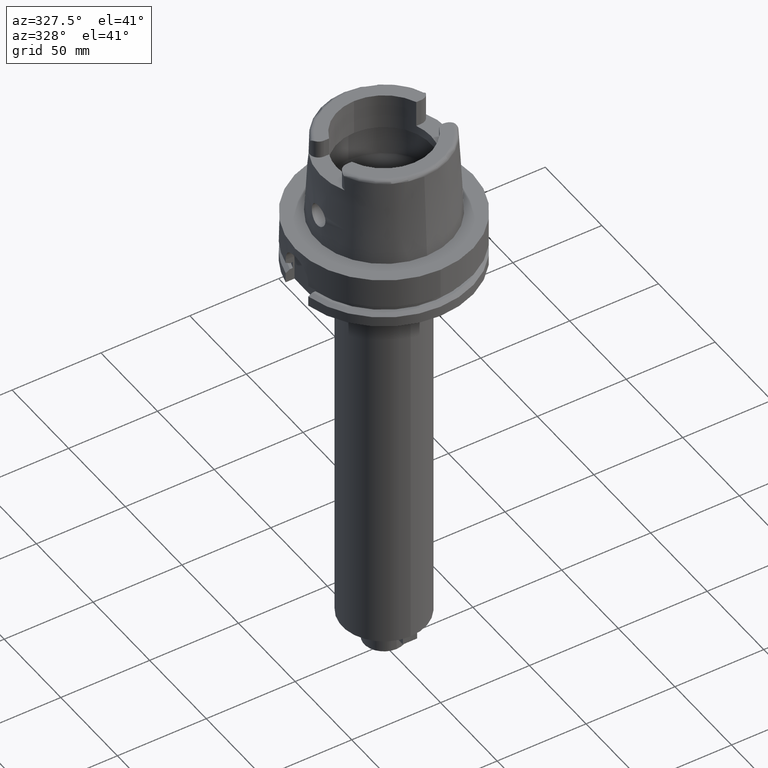
[diagram: clean part render]
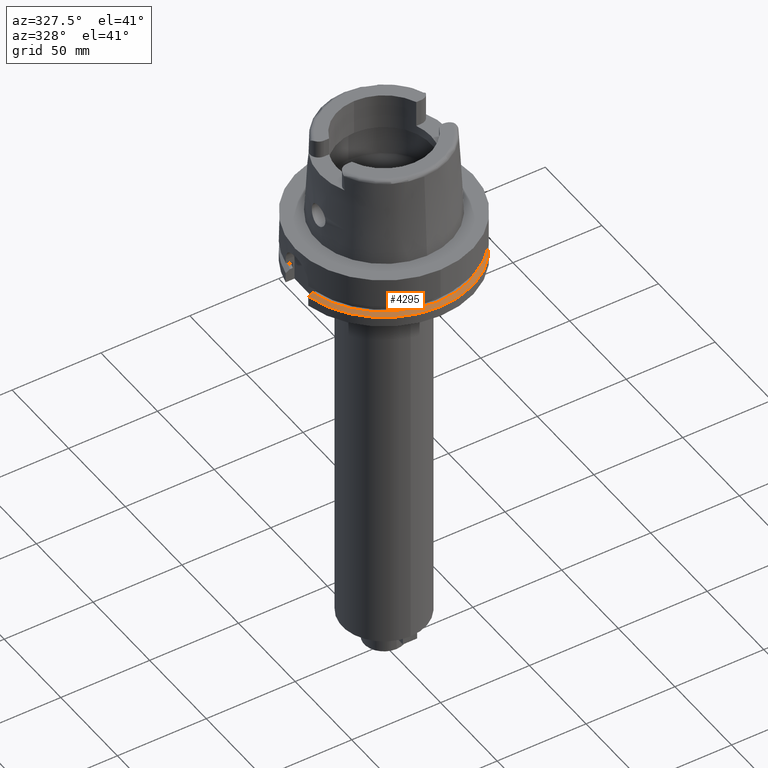
[diagram: same view with one face highlighted and labeled with its STEP entity id]
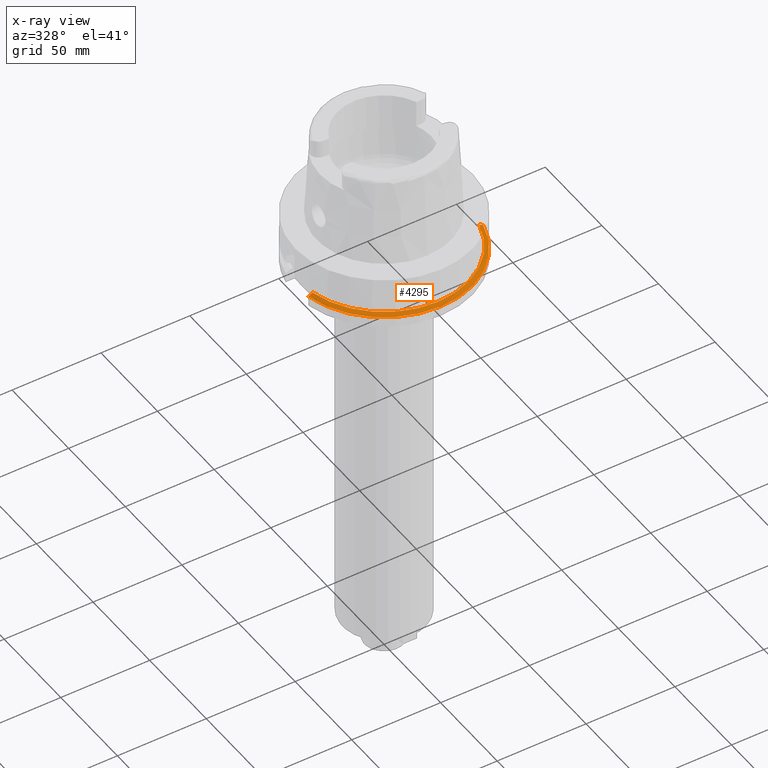
[diagram: x-ray of the same camera — body ghosted, the highlighted face saturated]
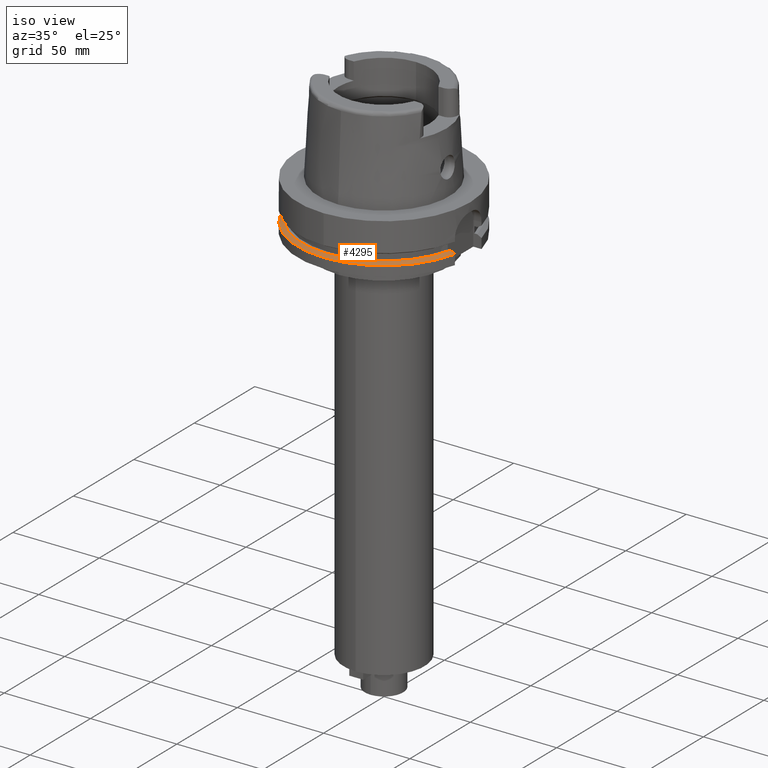
[diagram: same view with one face highlighted and labeled with its STEP entity id]
A machine part, auxiliary view. The second image highlights one B-rep face of the part: STEP entity #4295.
The next image is the same camera in x-ray: the body ghosted, the highlighted face saturated — about 0% of this face is hidden behind the body in this view.
A second angle (iso view) of the same face is appended — the face is thin or edge-on in the first view.
In plain terms, the highlighted conical surface has half-angle 60 deg.
Its self-contained STEP definition (entity closure, byte-faithful):
#1985=CARTESIAN_POINT('',(0.E0,0.E0,-2.1875E1));
#1986=DIRECTION('',(0.E0,0.E0,-1.E0));
#1987=DIRECTION('',(9.729578356533E-1,-2.309827916554E-1,0.E0));
#1988=AXIS2_PLACEMENT_3D('',#1985,#1986,#1987);
#1993=CARTESIAN_POINT('',(0.E0,0.E0,-2.1875E1));
#1994=DIRECTION('',(0.E0,0.E0,-1.E0));
#1995=DIRECTION('',(0.E0,-1.E0,0.E0));
#1996=AXIS2_PLACEMENT_3D('',#1993,#1994,#1995);
#2001=CARTESIAN_POINT('',(-4.898979485566E1,-1.E1,-2.324759526419E1));
#2002=CARTESIAN_POINT('',(-4.872004945853E1,-1.E1,-2.309500422459E1));
#2003=CARTESIAN_POINT('',(-4.818046650199E1,-1.E1,-2.278987516332E1));
#2004=CARTESIAN_POINT('',(-4.737081717348E1,-1.E1,-2.233233749621E1));
#2005=CARTESIAN_POINT('',(-4.683086373711E1,-1.E1,-2.202742395139E1));
#2006=CARTESIAN_POINT('',(-4.656083740330E1,-1.E1,-2.1875E1));
#2011=CARTESIAN_POINT('',(4.633477721644E1,-1.1E1,-2.1875E1));
#2012=CARTESIAN_POINT('',(4.660608588337E1,-1.1E1,-2.202740424370E1));
#2013=CARTESIAN_POINT('',(4.714858158706E1,-1.1E1,-2.233229423039E1));
#2014=CARTESIAN_POINT('',(4.796198326449E1,-1.1E1,-2.278983319675E1));
#2015=CARTESIAN_POINT('',(4.850402780016E1,-1.1E1,-2.309498594403E1));
#2016=CARTESIAN_POINT('',(4.877499359303E1,-1.1E1,-2.324759526419E1));
#2021=CARTESIAN_POINT('',(0.E0,0.E0,-2.324759526419E1));
#2022=DIRECTION('',(0.E0,0.E0,-1.E0));
#2023=DIRECTION('',(9.754998718606E-1,-2.2E-1,0.E0));
#2024=AXIS2_PLACEMENT_3D('',#2021,#2022,#2023);
#2029=CARTESIAN_POINT('',(0.E0,0.E0,-2.324759526419E1));
#2030=DIRECTION('',(0.E0,0.E0,-1.E0));
#2031=DIRECTION('',(0.E0,-1.E0,0.E0));
#2032=AXIS2_PLACEMENT_3D('',#2029,#2030,#2031);
#2680=CARTESIAN_POINT('',(-4.898979485566E1,-1.E1,-2.324759526419E1));
#2681=VERTEX_POINT('',#2680);
#2682=CARTESIAN_POINT('',(4.877499359303E1,-1.1E1,-2.324759526419E1));
#2683=CARTESIAN_POINT('',(1.598721155460E-14,-5.E1,-2.324759526419E1));
#2684=VERTEX_POINT('',#2682);
#2685=VERTEX_POINT('',#2683);
#2705=CARTESIAN_POINT('',(-4.656083740330E1,-1.E1,-2.1875E1));
#2706=VERTEX_POINT('',#2705);
#2721=CARTESIAN_POINT('',(7.396832229915E-14,-4.762259526419E1,-2.1875E1));
#2722=VERTEX_POINT('',#2721);
#2723=CARTESIAN_POINT('',(4.633477721644E1,-1.1E1,-2.1875E1));
#2724=VERTEX_POINT('',#2723);
#4282=CARTESIAN_POINT('',(0.E0,0.E0,-2.256129763210E1));
#4283=DIRECTION('',(0.E0,0.E0,-1.E0));
#4284=DIRECTION('',(0.E0,-1.E0,0.E0));
#4285=AXIS2_PLACEMENT_3D('',#4282,#4283,#4284);
#4286=CONICAL_SURFACE('',#4285,4.881129763209E1,6.E1);
#4287=ORIENTED_EDGE('',*,*,#3952,.T.);
#4288=ORIENTED_EDGE('',*,*,#4277,.F.);
#4289=ORIENTED_EDGE('',*,*,#4275,.F.);
#4290=ORIENTED_EDGE('',*,*,#3897,.T.);
#4291=ORIENTED_EDGE('',*,*,#3924,.T.);
#4292=ORIENTED_EDGE('',*,*,#3922,.T.);
#4293=EDGE_LOOP('',(#4287,#4288,#4289,#4290,#4291,#4292));
#4294=FACE_OUTER_BOUND('',#4293,.F.);
#1989=CIRCLE('',#1988,4.762259526419E1);
#1997=CIRCLE('',#1996,4.762259526419E1);
#2007=B_SPLINE_CURVE_WITH_KNOTS('',3,(#2001,#2002,#2003,#2004,#2005,#2006),
.UNSPECIFIED.,.F.,.F.,(4,1,1,4),(0.E0,3.333333333333E-1,6.666666666667E-1,1.E0),
.UNSPECIFIED.);
#2017=B_SPLINE_CURVE_WITH_KNOTS('',3,(#2011,#2012,#2013,#2014,#2015,#2016),
.UNSPECIFIED.,.F.,.F.,(4,1,1,4),(0.E0,3.333333333333E-1,6.666666666667E-1,1.E0),
.UNSPECIFIED.);
#2025=CIRCLE('',#2024,5.E1);
#2033=CIRCLE('',#2032,5.E1);
#3897=EDGE_CURVE('',#2724,#2684,#2017,.T.);
#3922=EDGE_CURVE('',#2685,#2681,#2033,.T.);
#3924=EDGE_CURVE('',#2684,#2685,#2025,.T.);
#3952=EDGE_CURVE('',#2681,#2706,#2007,.T.);
#4275=EDGE_CURVE('',#2724,#2722,#1989,.T.);
#4277=EDGE_CURVE('',#2722,#2706,#1997,.T.);
#4295=ADVANCED_FACE('',(#4294),#4286,.T.);